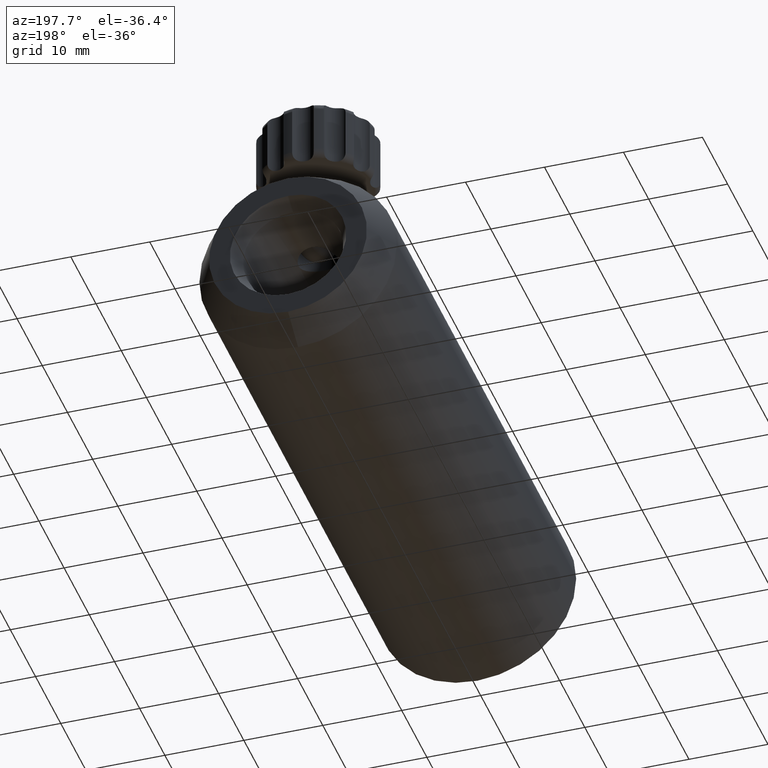
[diagram: clean part render]
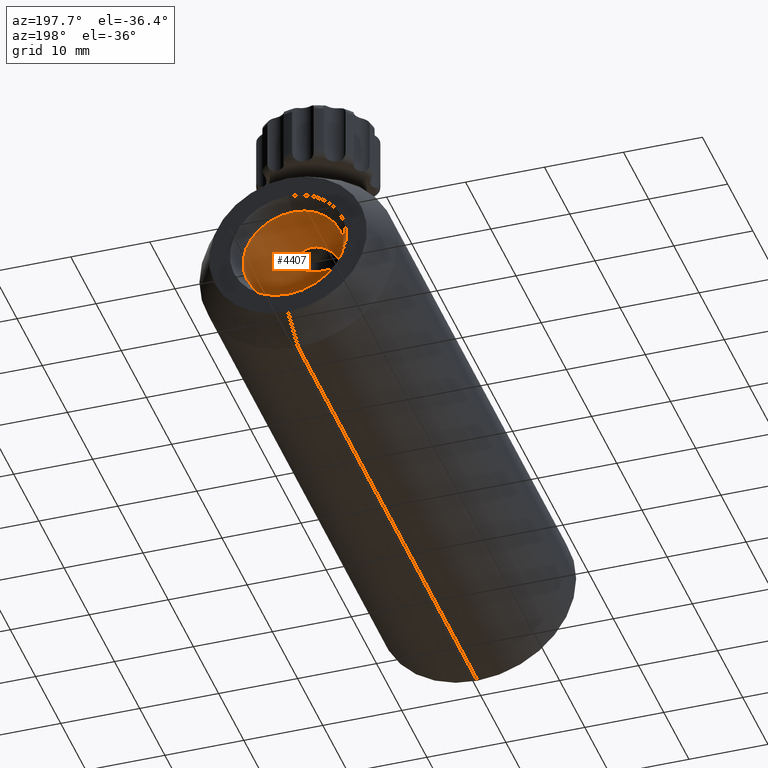
[diagram: same view with one face highlighted and labeled with its STEP entity id]
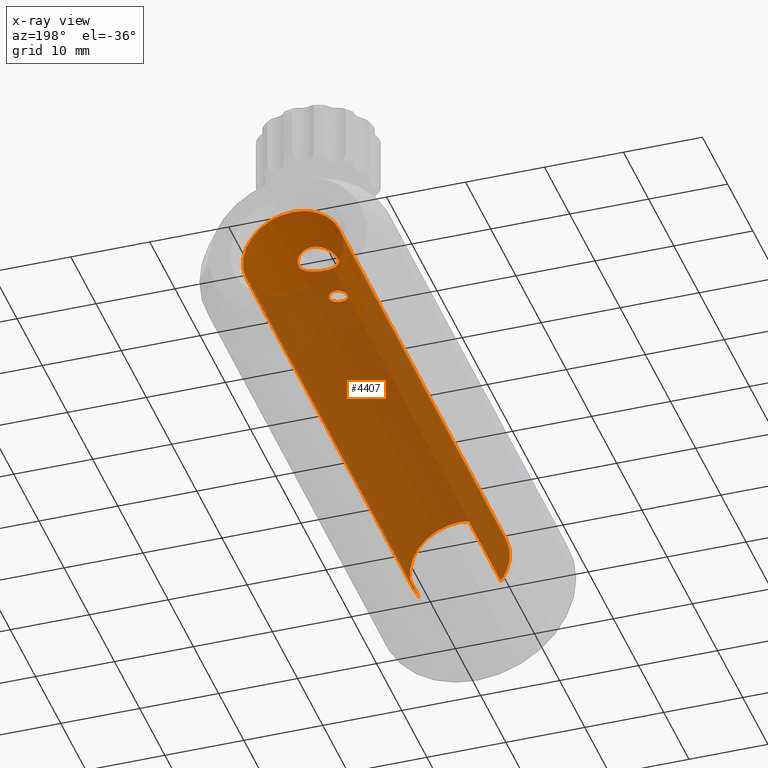
[diagram: x-ray of the same camera — body ghosted, the highlighted face saturated]
A machine part, auxiliary view. The second image highlights one B-rep face of the part: STEP entity #4407.
The next image is the same camera in x-ray: the body ghosted, the highlighted face saturated — about 82% of this face is hidden behind the body in this view.
In plain terms, the highlighted cylindrical surface (partial cylindrical patch) has radius 6.35 mm, axis along (0, -1, -0).
Its self-contained STEP definition (entity closure, byte-faithful):
#89 = CARTESIAN_POINT ( 'NONE',  ( 2.244019427994731400, 55.58579029679641100, 5.940660686953818500 ) ) ;
#110 = CARTESIAN_POINT ( 'NONE',  ( -1.655067213075832400, 56.35241933902322100, 6.131674996144226100 ) ) ;
#117 = CARTESIAN_POINT ( 'NONE',  ( 1.881723800611122300, 52.81783627434876400, 6.065959359758592100 ) ) ;
#125 = CARTESIAN_POINT ( 'NONE',  ( -1.986212670231926300, 55.99861509586583000, 6.032132578831114400 ) ) ;
#130 = DIRECTION ( 'NONE',  ( -9.992007221626422700E-016, 0.0000000000000000000, -1.000000000000000000 ) ) ;
#133 = CARTESIAN_POINT ( 'NONE',  ( 0.3284318915765269700, 51.97160538155336700, 6.350051295051354600 ) ) ;
#151 = CARTESIAN_POINT ( 'NONE',  ( 0.7068240649498003200, 47.39112190860253500, 6.311440894084793000 ) ) ;
#166 = CARTESIAN_POINT ( 'NONE',  ( 2.243096637720002100, 53.35567674083624500, 5.941014789653969800 ) ) ;
#171 = CARTESIAN_POINT ( 'NONE',  ( 1.149999999999984400, 46.47173567099245200, 6.244997998398421400 ) ) ;
#221 = FACE_OUTER_BOUND ( 'NONE', #1072, .T. ) ;
#252 = CARTESIAN_POINT ( 'NONE',  ( 6.852540497365953800E-015, 64.47173567099247300, 6.350000000000000500 ) ) ;
#267 = VERTEX_POINT ( 'NONE', #4438 ) ;
#269 = CARTESIAN_POINT ( 'NONE',  ( -2.370361362325551700, 55.28280548970500500, 5.891382819457578400 ) ) ;
#360 = CARTESIAN_POINT ( 'NONE',  ( -1.149999999999981500, 46.32146059201443200, 6.244997998398402700 ) ) ;
#381 = CARTESIAN_POINT ( 'NONE',  ( 1.149999999999984100, 46.31943011388187200, 6.244997998398420500 ) ) ;
#408 = CARTESIAN_POINT ( 'NONE',  ( -0.9202189201406940600, 45.76562053235922900, 6.283895093135358300 ) ) ;
#416 = CARTESIAN_POINT ( 'NONE',  ( -1.149999999999980400, 46.47173567099245200, 6.244997998398401900 ) ) ;
#438 = CARTESIAN_POINT ( 'NONE',  ( 2.499999999999946700, 54.47173567099250800, 5.837165407969830100 ) ) ;
#500 = CARTESIAN_POINT ( 'NONE',  ( -0.1637931278072006500, 56.97181945224472300, 6.350032984741367200 ) ) ;
#526 = CARTESIAN_POINT ( 'NONE',  ( -0.3331985350226677700, 51.98859715653555500, 6.343309839352363300 ) ) ;
#542 = CARTESIAN_POINT ( 'NONE',  ( 2.499999999999946700, 54.13795904288392800, 5.837165407969831000 ) ) ;
#567 = ORIENTED_EDGE ( 'NONE', *, *, #4238, .T. ) ;
#589 = CARTESIAN_POINT ( 'NONE',  ( 5.198049867510490300, -1.728264329007541900, -3.647297297297430200 ) ) ;
#592 = CARTESIAN_POINT ( 'NONE',  ( 2.433476067635977000, 53.81107352195468300, 5.866792245886478500 ) ) ;
#603 = CIRCLE ( 'NONE', #2008, 6.349999999999991700 ) ;
#639 = CARTESIAN_POINT ( 'NONE',  ( -2.499999999999999600, 54.47173567099245900, 5.837165407969865600 ) ) ;
#660 = CARTESIAN_POINT ( 'NONE',  ( -1.119752780228494300, 46.77357161410650800, 6.250763069355883800 ) ) ;
#779 = CARTESIAN_POINT ( 'NONE',  ( -5.198049867510712300, -1.728264329007514100, -3.647297297297291700 ) ) ;
#802 = CARTESIAN_POINT ( 'NONE',  ( 0.5790424492461939700, 45.46692714969946500, 6.325064318599416400 ) ) ;
#872 = ORIENTED_EDGE ( 'NONE', *, *, #4790, .F. ) ;
#909 = CARTESIAN_POINT ( 'NONE',  ( -0.8104405031168648900, 56.84249547125632100, 6.299960064875826900 ) ) ;
#935 = LINE ( 'NONE', #4866, #2643 ) ;
#960 = CARTESIAN_POINT ( 'NONE',  ( 1.986037929072717500, 52.94472602920234300, 6.032182534551962400 ) ) ;
#971 = CARTESIAN_POINT ( 'NONE',  ( -1.113575732509353600, 52.22746360557979300, 6.253464695835116800 ) ) ;
#1008 = CARTESIAN_POINT ( 'NONE',  ( -2.244592293172414300, 53.35882537956324300, 5.940443625145369400 ) ) ;
#1028 = EDGE_LOOP ( 'NONE', ( #2101, #3788 ) ) ;
#1034 = CARTESIAN_POINT ( 'NONE',  ( 1.881716875495785400, 56.12556950653164700, 6.065949972237393500 ) ) ;
#1057 = ORIENTED_EDGE ( 'NONE', *, *, #3754, .T. ) ;
#1072 = EDGE_LOOP ( 'NONE', ( #1057, #5060, #567, #2198, #872 ) ) ;
#1073 = CARTESIAN_POINT ( 'NONE',  ( -0.7077497915007384700, 47.39046326598878500, 6.311338893647564100 ) ) ;
#1089 = CARTESIAN_POINT ( 'NONE',  ( -2.500000000000000400, 54.63617300694283300, 5.837165407969867400 ) ) ;
#1199 = CARTESIAN_POINT ( 'NONE',  ( -0.5796644291455825800, 45.46711166244444500, 6.325031622074015500 ) ) ;
#1223 = CARTESIAN_POINT ( 'NONE',  ( -5.198049867510712300, 64.47173567099247300, -3.647297297297291700 ) ) ;
#1314 = CYLINDRICAL_SURFACE ( 'NONE', #4912, 6.349999999999991700 ) ;
#1327 = CARTESIAN_POINT ( 'NONE',  ( -1.527953454254810100, 56.45709451222882800, 6.164973635936216400 ) ) ;
#1343 = CARTESIAN_POINT ( 'NONE',  ( -2.499999999999999600, 54.47173567099245900, 5.837165407969865600 ) ) ;
#1353 = CARTESIAN_POINT ( 'NONE',  ( -2.370484275161899300, 53.66082989314384800, 5.891338500486065200 ) ) ;
#1369 = CARTESIAN_POINT ( 'NONE',  ( -2.499999999999999600, 54.30743800768905800, 5.837165407969864700 ) ) ;
#1383 = FACE_BOUND ( 'NONE', #2645, .T. ) ;
#1390 = CARTESIAN_POINT ( 'NONE',  ( 0.6600627033417414400, 52.03846990751327400, 6.322947863674669700 ) ) ;
#1406 = DIRECTION ( 'NONE',  ( 1.502285461903961200E-018, -1.000000000000000000, -4.971860657915503100E-018 ) ) ;
#1443 = DIRECTION ( 'NONE',  ( 1.502285461903961200E-018, -1.000000000000000000, -4.971860657915503100E-018 ) ) ;
#1447 = B_SPLINE_CURVE_WITH_KNOTS ( 'NONE', 3,
 ( #3030, #1369, #3806, #2585, #1353, #1008, #2996, #3399, #4209, #5026, #4257, #2569, #971, #3854, #2617, #526, #3822, #133, #1390, #4592, #4643, #5003, #2552, #117, #960, #2985, #166, #592, #542, #1793 ),
 .UNSPECIFIED., .F., .F.,
 ( 4, 2, 2, 2, 2, 2, 2, 2, 2, 2, 2, 2, 2, 2, 4 ),
 ( 0.007896534328433754300, 0.008389648517973830000, 0.008882762707513905700, 0.009375876897053981400, 0.009868991086594055400, 0.01036210527613413300, 0.01085521946567420700, 0.01134833365521428400, 0.01184144784475436000, 0.01282767622383451300, 0.01332079041337458900, 0.01381390460291466400, 0.01430701879245474200, 0.01480013298199481800, 0.01578636136107497100 ),
 .UNSPECIFIED. ) ;
#1452 = CARTESIAN_POINT ( 'NONE',  ( 1.263413875870127000, 56.65342131151456300, 6.230461706489468700 ) ) ;
#1565 = ORIENTED_EDGE ( 'NONE', *, *, #5188, .F. ) ;
#1679 = DIRECTION ( 'NONE',  ( 1.502285461903961200E-018, -1.000000000000000000, -4.971860657915503100E-018 ) ) ;
#1687 = CARTESIAN_POINT ( 'NONE',  ( 5.198049867510490300, 64.47173567099247300, -3.647297297297430200 ) ) ;
#1720 = DIRECTION ( 'NONE',  ( 1.502285461903961200E-018, -1.000000000000000000, -4.971860657915503100E-018 ) ) ;
#1754 = CARTESIAN_POINT ( 'NONE',  ( 2.167172094162384000, 55.72866092003545900, 5.969511276234101200 ) ) ;
#1785 = CARTESIAN_POINT ( 'NONE',  ( 1.119299609506218200, 46.77520895191523200, 6.250845766393067200 ) ) ;
#1793 = CARTESIAN_POINT ( 'NONE',  ( 2.499999999999946700, 54.47173567099250800, 5.837165407969830100 ) ) ;
#1898 = CARTESIAN_POINT ( 'NONE',  ( -0.3020122177399225900, 47.59159656569632800, 6.344353654212151000 ) ) ;
#1900 = DIRECTION ( 'NONE',  ( -1.502285461903961200E-018, 1.000000000000000000, 4.971860657915503100E-018 ) ) ;
#1919 = CARTESIAN_POINT ( 'NONE',  ( -2.418379982533279000, 55.12668655197290900, 5.871557915888741900 ) ) ;
#2008 = AXIS2_PLACEMENT_3D ( 'NONE', #3879, #3069, #3086 ) ;
#2037 = CARTESIAN_POINT ( 'NONE',  ( 0.1508031920785137000, 45.32179323020468300, 6.349989575891434900 ) ) ;
#2069 = CARTESIAN_POINT ( 'NONE',  ( 0.0000000000000000000, -1.728264329007514100, 0.0000000000000000000 ) ) ;
#2101 = ORIENTED_EDGE ( 'NONE', *, *, #5120, .T. ) ;
#2123 = DIRECTION ( 'NONE',  ( -9.992007221626422700E-016, 0.0000000000000000000, -1.000000000000000000 ) ) ;
#2128 = CARTESIAN_POINT ( 'NONE',  ( 2.483432635368136900, 54.80262500282884700, 5.844337997816587000 ) ) ;
#2149 = EDGE_CURVE ( 'NONE', #2440, #4941, #5007, .T. ) ;
#2164 = CARTESIAN_POINT ( 'NONE',  ( 1.539476228137879100, 56.46775970977511600, 6.165139317472736900 ) ) ;
#2198 = ORIENTED_EDGE ( 'NONE', *, *, #3505, .F. ) ;
#2224 = EDGE_CURVE ( 'NONE', #4734, #3166, #3096, .T. ) ;
#2383 = EDGE_CURVE ( 'NONE', #3435, #267, #1447, .T. ) ;
#2399 = CARTESIAN_POINT ( 'NONE',  ( 1.149999999999984400, 46.47173567099245200, 6.244997998398421400 ) ) ;
#2437 = CARTESIAN_POINT ( 'NONE',  ( 1.004322450805321500, 45.89160451156676100, 6.270348633288236300 ) ) ;
#2440 = VERTEX_POINT ( 'NONE', #3935 ) ;
#2552 = CARTESIAN_POINT ( 'NONE',  ( 1.652428340705182500, 52.58871993690017600, 6.132391702660842500 ) ) ;
#2560 = CARTESIAN_POINT ( 'NONE',  ( 0.6534252697596493200, 56.89046990547819100, 6.318376364963747900 ) ) ;
#2569 = CARTESIAN_POINT ( 'NONE',  ( -1.259111670948990700, 52.30591377476274300, 6.225437667610629300 ) ) ;
#2585 = CARTESIAN_POINT ( 'NONE',  ( -2.418427677226032500, 53.81714516399027600, 5.871537488348868900 ) ) ;
#2600 = VERTEX_POINT ( 'NONE', #1223 ) ;
#2617 = CARTESIAN_POINT ( 'NONE',  ( -0.6553341927215606800, 52.05356792627942800, 6.318159390013501100 ) ) ;
#2621 = CARTESIAN_POINT ( 'NONE',  ( 0.5791649669136443900, 47.47657811422311600, 6.325067982020982500 ) ) ;
#2643 = VECTOR ( 'NONE', #1679, 1000.000000000000000 ) ;
#2645 = EDGE_LOOP ( 'NONE', ( #3422, #1565 ) ) ;
#2812 = B_SPLINE_CURVE_WITH_KNOTS ( 'NONE', 3,
 ( #416, #4982, #660, #4765, #3500, #1073, #3117, #1898, #5151, #4242, #5046, #2621, #151, #2999, #3838, #1785, #4660, #171 ),
 .UNSPECIFIED., .F., .F.,
 ( 4, 2, 2, 2, 2, 2, 2, 2, 4 ),
 ( 0.003602856889043432800, 0.004053099614948412600, 0.004503342340853392000, 0.004953585066758371300, 0.005403827792663351600, 0.005854070518568330100, 0.006304313244473310300, 0.006754555970378288800, 0.007204798696283268100 ),
 .UNSPECIFIED. ) ;
#2827 = CARTESIAN_POINT ( 'NONE',  ( 0.7071202035350757600, 45.55255577080965400, 6.311408557841820000 ) ) ;
#2939 = CARTESIAN_POINT ( 'NONE',  ( 0.3297799283205367100, 56.95537917985412700, 6.343507678829579900 ) ) ;
#2953 = CARTESIAN_POINT ( 'NONE',  ( -1.883839959319162100, 56.12320942091057000, 6.065297416105106100 ) ) ;
#2973 = CARTESIAN_POINT ( 'NONE',  ( -2.167144517491975900, 55.72867090790643400, 5.969518310574983400 ) ) ;
#2985 = CARTESIAN_POINT ( 'NONE',  ( 2.166071385210580000, 53.21306976774117500, 5.969900128146288200 ) ) ;
#2996 = CARTESIAN_POINT ( 'NONE',  ( -2.166292727462313800, 53.21342044154339800, 5.969821880760330900 ) ) ;
#2999 = CARTESIAN_POINT ( 'NONE',  ( 0.9184835117192498000, 47.17973238807444100, 6.284128774700426400 ) ) ;
#3030 = CARTESIAN_POINT ( 'NONE',  ( -2.499999999999999600, 54.47173567099245900, 5.837165407969865600 ) ) ;
#3054 = CARTESIAN_POINT ( 'NONE',  ( 2.499999999999946700, 54.63876586005641700, 5.837165407969831000 ) ) ;
#3069 = DIRECTION ( 'NONE',  ( 1.502285461903961200E-018, -1.000000000000000000, -4.971860657915503100E-018 ) ) ;
#3086 = DIRECTION ( 'NONE',  ( -9.992007221626422700E-016, 0.0000000000000000000, -1.000000000000000000 ) ) ;
#3096 = CIRCLE ( 'NONE', #5246, 6.349999999999991700 ) ;
#3117 = CARTESIAN_POINT ( 'NONE',  ( -0.5808689022316694300, 47.47567347861367200, 6.324921026210478900 ) ) ;
#3166 = VERTEX_POINT ( 'NONE', #779 ) ;
#3196 = CARTESIAN_POINT ( 'NONE',  ( -1.004663207846495900, 45.89223675763177800, 6.270292828471331100 ) ) ;
#3215 = CARTESIAN_POINT ( 'NONE',  ( 0.9188761694954495900, 45.76422082572000200, 6.284072210866121100 ) ) ;
#3234 = CARTESIAN_POINT ( 'NONE',  ( -0.7062143351936680500, 45.55159287622693400, 6.311529269145672100 ) ) ;
#3341 = CARTESIAN_POINT ( 'NONE',  ( -0.6535351813625656100, 56.89039360952788400, 6.318347517146482200 ) ) ;
#3376 = CARTESIAN_POINT ( 'NONE',  ( 2.418876764785364000, 55.12439224310072900, 5.871350737599977200 ) ) ;
#3399 = CARTESIAN_POINT ( 'NONE',  ( -1.986015574467662000, 52.94467197366630300, 6.032191940499972200 ) ) ;
#3422 = ORIENTED_EDGE ( 'NONE', *, *, #2149, .F. ) ;
#3435 = VERTEX_POINT ( 'NONE', #1343 ) ;
#3445 = CARTESIAN_POINT ( 'NONE',  ( 0.0000000000000000000, 64.47173567099247300, 0.0000000000000000000 ) ) ;
#3466 = CARTESIAN_POINT ( 'NONE',  ( -1.149999999999980400, 46.47173567099245200, 6.244997998398401900 ) ) ;
#3500 = CARTESIAN_POINT ( 'NONE',  ( -0.9196089709176484800, 47.17833987546967500, 6.283965924354268000 ) ) ;
#3505 = EDGE_CURVE ( 'NONE', #4102, #2600, #603, .T. ) ;
#3632 = CARTESIAN_POINT ( 'NONE',  ( -0.1499240369021112300, 45.32167827980496400, 6.350010393678887900 ) ) ;
#3671 = VECTOR ( 'NONE', #1900, 1000.000000000000000 ) ;
#3684 = CARTESIAN_POINT ( 'NONE',  ( 1.119898457355003900, 46.17000202596414500, 6.250740997144672100 ) ) ;
#3754 = EDGE_CURVE ( 'NONE', #5029, #4734, #935, .T. ) ;
#3761 = CARTESIAN_POINT ( 'NONE',  ( -1.258695842865563000, 56.63783268220815600, 6.225530215596963400 ) ) ;
#3788 = ORIENTED_EDGE ( 'NONE', *, *, #2383, .T. ) ;
#3795 = CARTESIAN_POINT ( 'NONE',  ( -0.3312526691300927700, 56.95513779833979100, 6.343413532941385200 ) ) ;
#3806 = CARTESIAN_POINT ( 'NONE',  ( -2.483525743134800600, 54.14100761802900100, 5.844300196793950500 ) ) ;
#3822 = CARTESIAN_POINT ( 'NONE',  ( -0.1657013371532053100, 51.97180110989704400, 6.349974236653456400 ) ) ;
#3838 = CARTESIAN_POINT ( 'NONE',  ( 1.004247825115535300, 47.05174770002764700, 6.270358101163410900 ) ) ;
#3854 = CARTESIAN_POINT ( 'NONE',  ( -0.8113526821697774100, 52.10139501177039300, 6.299807809705456800 ) ) ;
#3858 = LINE ( 'NONE', #4820, #3671 ) ;
#3879 = CARTESIAN_POINT ( 'NONE',  ( 0.0000000000000000000, 64.47173567099247300, 0.0000000000000000000 ) ) ;
#3935 = CARTESIAN_POINT ( 'NONE',  ( 1.149999999999984400, 46.47173567099245200, 6.244997998398421400 ) ) ;
#4043 = CARTESIAN_POINT ( 'NONE',  ( -1.149999999999980400, 46.47173567099245200, 6.244997998398401900 ) ) ;
#4084 = CARTESIAN_POINT ( 'NONE',  ( -0.3007954619443040700, 45.35155606974921500, 6.344411553542743200 ) ) ;
#4102 = VERTEX_POINT ( 'NONE', #252 ) ;
#4114 = CIRCLE ( 'NONE', #4698, 6.349999999999991700 ) ;
#4156 = B_SPLINE_CURVE_WITH_KNOTS ( 'NONE', 3,
 ( #438, #3054, #2128, #3376, #4199, #89, #1754, #4600, #1034, #2164, #1452, #4617, #2560, #2939, #4996, #500, #3795, #3341, #909, #4217, #3761, #1327, #110, #2953, #125, #2973, #5113, #269, #1919, #4708, #1089, #639 ),
 .UNSPECIFIED., .F., .F.,
 ( 4, 2, 2, 2, 2, 2, 2, 2, 2, 2, 2, 2, 2, 2, 2, 4 ),
 ( 5.629170997246951800E-017, 0.0004935333955271618000, 0.0009870667910542674300, 0.001480600186581372800, 0.001974133582108478500, 0.002961200373162690200, 0.003454733768689796500, 0.003948267164216903200, 0.004441800559744009000, 0.004935333955271115800, 0.005428867350798222500, 0.005922400746325328300, 0.006415934141852435100, 0.006909467537379540900, 0.007403000932906648500, 0.007896534328433754300 ),
 .UNSPECIFIED. ) ;
#4199 = CARTESIAN_POINT ( 'NONE',  ( 2.370019981178974200, 55.28398328798211700, 5.891525938120685700 ) ) ;
#4209 = CARTESIAN_POINT ( 'NONE',  ( -1.883140398206855700, 52.81934455064899900, 6.065534353720267700 ) ) ;
#4217 = CARTESIAN_POINT ( 'NONE',  ( -1.115485120241284100, 56.71517249563444100, 6.253159487382588600 ) ) ;
#4238 = EDGE_CURVE ( 'NONE', #3166, #2600, #3858, .T. ) ;
#4242 = CARTESIAN_POINT ( 'NONE',  ( 0.1512638822394521100, 47.62182044804515600, 6.350015353322181300 ) ) ;
#4257 = CARTESIAN_POINT ( 'NONE',  ( -1.527623078464054800, 52.48615907557942300, 6.165046965220073000 ) ) ;
#4349 = DIRECTION ( 'NONE',  ( -9.992007221626422700E-016, 0.0000000000000000000, -1.000000000000000000 ) ) ;
#4407 = ADVANCED_FACE ( 'NONE', ( #1383, #4446, #221 ), #1314, .F. ) ;
#4438 = CARTESIAN_POINT ( 'NONE',  ( 2.499999999999946700, 54.47173567099250800, 5.837165407969830100 ) ) ;
#4446 = FACE_BOUND ( 'NONE', #1028, .T. ) ;
#4492 = CARTESIAN_POINT ( 'NONE',  ( -1.119981716813855900, 46.17039183782293300, 6.250724859564855700 ) ) ;
#4592 = CARTESIAN_POINT ( 'NONE',  ( 1.111870668461132100, 52.22666108901721300, 6.253755410262583000 ) ) ;
#4600 = CARTESIAN_POINT ( 'NONE',  ( 1.985888168350004000, 55.99906803501983900, 6.032242364627744100 ) ) ;
#4617 = CARTESIAN_POINT ( 'NONE',  ( 0.8128060020278945500, 56.84151163445774600, 6.299598267152489900 ) ) ;
#4643 = CARTESIAN_POINT ( 'NONE',  ( 1.257559724430133300, 52.30493972239458600, 6.225770274244425200 ) ) ;
#4660 = CARTESIAN_POINT ( 'NONE',  ( 1.149999999999984600, 46.62400254434508200, 6.244997998398422300 ) ) ;
#4698 = AXIS2_PLACEMENT_3D ( 'NONE', #3445, #1406, #130 ) ;
#4699 = CARTESIAN_POINT ( 'NONE',  ( 0.0000000000000000000, -19.86467094839286000, 0.0000000000000000000 ) ) ;
#4708 = CARTESIAN_POINT ( 'NONE',  ( -2.483717614609515200, 54.80138579960331700, 5.844219444068799300 ) ) ;
#4734 = VERTEX_POINT ( 'NONE', #589 ) ;
#4765 = CARTESIAN_POINT ( 'NONE',  ( -1.005027344709263700, 47.05041629255466500, 6.270231676297094700 ) ) ;
#4790 = EDGE_CURVE ( 'NONE', #5029, #4102, #4114, .T. ) ;
#4820 = CARTESIAN_POINT ( 'NONE',  ( -5.198049867510712300, 31.37173567099244700, -3.647297297297291700 ) ) ;
#4866 = CARTESIAN_POINT ( 'NONE',  ( 5.198049867510490300, 31.37173567099244700, -3.647297297297430200 ) ) ;
#4912 = AXIS2_PLACEMENT_3D ( 'NONE', #4699, #1443, #4349 ) ;
#4941 = VERTEX_POINT ( 'NONE', #3466 ) ;
#4982 = CARTESIAN_POINT ( 'NONE',  ( -1.149999999999979700, 46.62197258192923500, 6.244997998398404500 ) ) ;
#4996 = CARTESIAN_POINT ( 'NONE',  ( 0.1663407536635855800, 56.97165124070037500, 6.349966759731174200 ) ) ;
#5003 = CARTESIAN_POINT ( 'NONE',  ( 1.527743458753310300, 52.48617250966884000, 6.165036244209011900 ) ) ;
#5007 = B_SPLINE_CURVE_WITH_KNOTS ( 'NONE', 3,
 ( #2399, #381, #3684, #2437, #3215, #2827, #802, #5289, #2037, #3632, #4084, #1199, #3234, #408, #3196, #4492, #360, #4043 ),
 .UNSPECIFIED., .F., .F.,
 ( 4, 2, 2, 2, 2, 2, 2, 2, 4 ),
 ( 0.0000000000000000000, 0.0004503571111304291000, 0.0009007142222608582100, 0.001351071333391287400, 0.001801428444521716400, 0.002251785555652145500, 0.002702142666782574700, 0.003152499777913003600, 0.003602856889043432800 ),
 .UNSPECIFIED. ) ;
#5026 = CARTESIAN_POINT ( 'NONE',  ( -1.652430089841928900, 52.58862946789777500, 6.132405690567480000 ) ) ;
#5029 = VERTEX_POINT ( 'NONE', #1687 ) ;
#5046 = CARTESIAN_POINT ( 'NONE',  ( 0.3011452299328791200, 47.59175886053207400, 6.344385595672425100 ) ) ;
#5060 = ORIENTED_EDGE ( 'NONE', *, *, #2224, .T. ) ;
#5113 = CARTESIAN_POINT ( 'NONE',  ( -2.245309006400956900, 55.58305682376831000, 5.940167672648689400 ) ) ;
#5120 = EDGE_CURVE ( 'NONE', #267, #3435, #4156, .T. ) ;
#5151 = CARTESIAN_POINT ( 'NONE',  ( -0.1525502007840752700, 47.62165053424071500, 6.349984581535480300 ) ) ;
#5188 = EDGE_CURVE ( 'NONE', #4941, #2440, #2812, .T. ) ;
#5246 = AXIS2_PLACEMENT_3D ( 'NONE', #2069, #1720, #2123 ) ;
#5289 = CARTESIAN_POINT ( 'NONE',  ( 0.3023753444501421900, 45.35213776390229200, 6.344312251419942200 ) ) ;